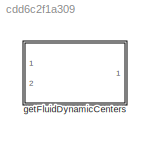
MODEL slx_cdd6c2f1a309
KIND library
CONFIG AbsTol = auto
CONFIG EnableMultiTasking = off
CONFIG FixedStep = auto
CONFIG MaxStep = auto
CONFIG MinStep = auto
CONFIG RelTol = 1e-3
CONFIG SampleTimeConstraint = Unconstrained
CONFIG Solver = VariableStepAuto
CONFIG SolverName = VariableStepAuto
CONFIG StartTime = 0.0
CONFIG StopTime = 10.0
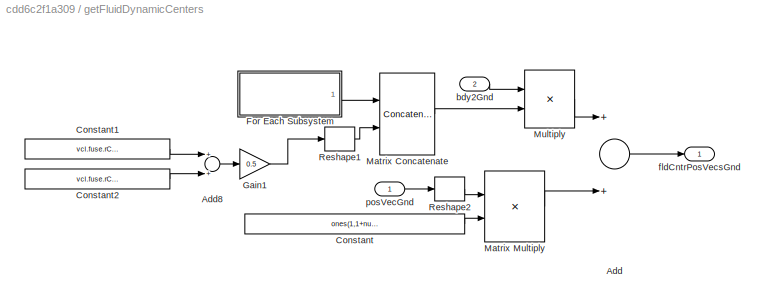
BLOCK [SubSystem] getFluidDynamicCenters
  Ports = [2, 1]
  RequestExecContextInheritance = off
BLOCK [Sum] getFluidDynamicCenters/Add
  InputSameDT = off
  OutDataTypeStr = Inherit: Inherit via internal rule
  Ports = [2, 1]
  SaturateOnIntegerOverflow = off
BLOCK [Sum] getFluidDynamicCenters/Add8
  InputSameDT = off
  OutDataTypeStr = Inherit: Inherit via internal rule
  Ports = [2, 1]
  SaturateOnIntegerOverflow = off
BLOCK [Constant] getFluidDynamicCenters/Constant
  Value = ones(1,1+numel(vcl.struct('OCT.aeroSurf')))
  VectorParams1D = off
BLOCK [Constant] getFluidDynamicCenters/Constant1
  Value = vcl.fuse.rCmToEnd.Value
BLOCK [Constant] getFluidDynamicCenters/Constant2
  Value = vcl.fuse.rCmToNose.Value
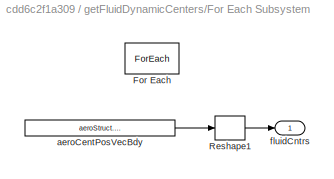
BLOCK [SubSystem] getFluidDynamicCenters/For Each Subsystem
  Ports = [0, 1]
  RequestExecContextInheritance = off
  TreatAsAtomicUnit = on
BLOCK [ForEach] getFluidDynamicCenters/For Each Subsystem/For Each
  DisableCoverage = on
  IndexMode = One-based
  IterateSubsysMaskParameter = on
  Ports = []
  SubsysMaskParameterIterationDimension = 2
BLOCK [Reshape] getFluidDynamicCenters/For Each Subsystem/Reshape1
  OutputDimensionality = Column vector (2-D)
  Ports = [1, 1]
BLOCK [Constant] getFluidDynamicCenters/For Each Subsystem/aeroCentPosVecBdy
  Value = aeroStruct.aeroCentPosVec
BLOCK [Outport] getFluidDynamicCenters/For Each Subsystem/fluidCntrs
  ConcatenationDimension = 2
  IconDisplay = Port number
BLOCK [Gain] getFluidDynamicCenters/Gain1
  Gain = 0.5
  OutDataTypeStr = Inherit: Inherit via internal rule
  ParamDataTypeStr = Inherit: Inherit via internal rule
  SaturateOnIntegerOverflow = off
BLOCK [Concatenate] getFluidDynamicCenters/Matrix Concatenate
  ConcatenateDimension = 2
  Mode = Multidimensional array
  Ports = [2, 1]
BLOCK [Product] getFluidDynamicCenters/Matrix Multiply
  InputSameDT = off
  Multiplication = Matrix(*)
  OutDataTypeStr = Inherit: Inherit via internal rule
  Ports = [2, 1]
  RndMeth = Floor
  SaturateOnIntegerOverflow = off
BLOCK [Product] getFluidDynamicCenters/Multiply
  InputSameDT = off
  Multiplication = Matrix(*)
  OutDataTypeStr = Inherit: Inherit via internal rule
  Ports = [2, 1]
  RndMeth = Floor
  SaturateOnIntegerOverflow = off
BLOCK [Reshape] getFluidDynamicCenters/Reshape1
  OutputDimensionality = Column vector (2-D)
  Ports = [1, 1]
BLOCK [Reshape] getFluidDynamicCenters/Reshape2
  OutputDimensionality = Column vector (2-D)
  Ports = [1, 1]
BLOCK [Inport] getFluidDynamicCenters/bdy2Gnd
  IconDisplay = Port number
  Port = 2
BLOCK [Outport] getFluidDynamicCenters/fldCntrPosVecsGnd
  IconDisplay = Port number
BLOCK [Inport] getFluidDynamicCenters/posVecGnd
  IconDisplay = Port number
LINE getFluidDynamicCenters/Add8:1 -> getFluidDynamicCenters/Gain1:1
LINE getFluidDynamicCenters/Add:1 -> getFluidDynamicCenters/fldCntrPosVecsGnd:1
LINE getFluidDynamicCenters/Constant1:1 -> getFluidDynamicCenters/Add8:1
LINE getFluidDynamicCenters/Constant2:1 -> getFluidDynamicCenters/Add8:2
LINE getFluidDynamicCenters/Constant:1 -> getFluidDynamicCenters/Matrix Multiply:2
LINE getFluidDynamicCenters/For Each Subsystem/Reshape1:1 -> getFluidDynamicCenters/For Each Subsystem/fluidCntrs:1
LINE getFluidDynamicCenters/For Each Subsystem/aeroCentPosVecBdy:1 -> getFluidDynamicCenters/For Each Subsystem/Reshape1:1
LINE getFluidDynamicCenters/For Each Subsystem:1 -> getFluidDynamicCenters/Matrix Concatenate:1
LINE getFluidDynamicCenters/Gain1:1 -> getFluidDynamicCenters/Reshape1:1
LINE getFluidDynamicCenters/Matrix Concatenate:1 -> getFluidDynamicCenters/Multiply:2
LINE getFluidDynamicCenters/Matrix Multiply:1 -> getFluidDynamicCenters/Add:2
LINE getFluidDynamicCenters/Multiply:1 -> getFluidDynamicCenters/Add:1
LINE getFluidDynamicCenters/Reshape1:1 -> getFluidDynamicCenters/Matrix Concatenate:2
LINE getFluidDynamicCenters/Reshape2:1 -> getFluidDynamicCenters/Matrix Multiply:1
LINE getFluidDynamicCenters/bdy2Gnd:1 -> getFluidDynamicCenters/Multiply:1
LINE getFluidDynamicCenters/posVecGnd:1 -> getFluidDynamicCenters/Reshape2:1
